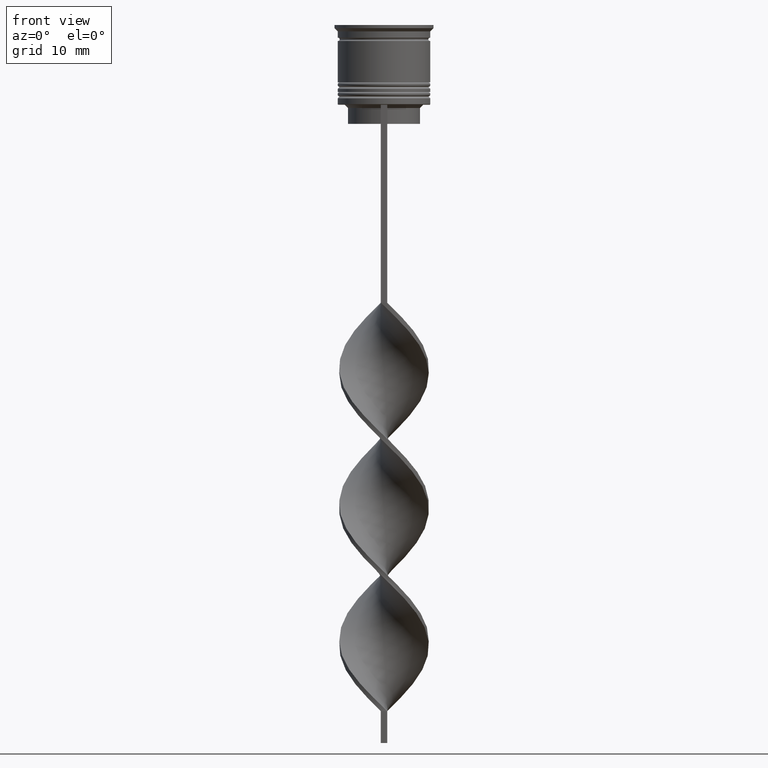
[diagram: clean part render]
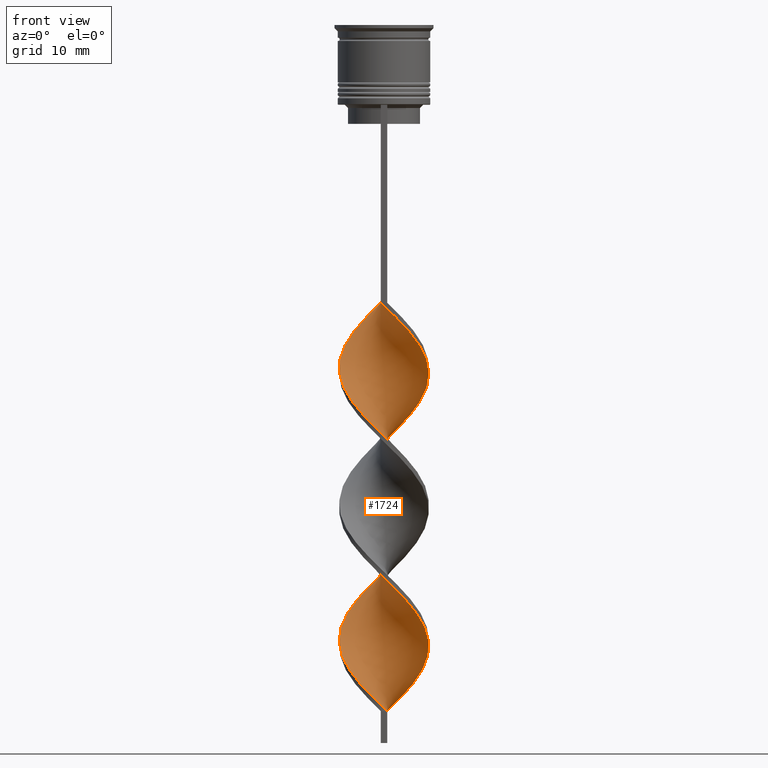
[diagram: same view with one face highlighted and labeled with its STEP entity id]
A machine part, front view. The second image highlights one B-rep face of the part: STEP entity #1724.
In plain terms, the highlighted face is a freeform B-spline surface patch.
Its self-contained STEP definition (entity closure, byte-faithful):
#1 = CARTESIAN_POINT ( 'NONE',  ( 0.4999999999999991673, -7.000000000000002665, -107.5000000000000000 ) ) ;
#11 = CARTESIAN_POINT ( 'NONE',  ( -7.009230458814042386, 0.3474023247382359014, -96.01282051282051100 ) ) ;
#31 = CARTESIAN_POINT ( 'NONE',  ( -0.5000000000000000000, 7.000000000000002665, -86.16666666666667140 ) ) ;
#38 = CARTESIAN_POINT ( 'NONE',  ( -1.189738741299881442, -6.916250554126144756, -105.8589743589743506 ) ) ;
#45 = CARTESIAN_POINT ( 'NONE',  ( 5.612054764172301979, 4.298947400341747382, -101.7564102564102484 ) ) ;
#55 = CARTESIAN_POINT ( 'NONE',  ( -2.810334191479776589, -6.430553765594355653, -104.2179487179487012 ) ) ;
#59 = LINE ( 'NONE', #3297, #3370 ) ;
#61 = CARTESIAN_POINT ( 'NONE',  ( -0.5000000000000000000, 7.000000000000002665, -43.50000000000000000 ) ) ;
#63 = CARTESIAN_POINT ( 'NONE',  ( 1.349953882555826601, 6.939289008388866975, -64.01282051282051100 ) ) ;
#75 = CARTESIAN_POINT ( 'NONE',  ( -5.476854687890019058, -4.387945160064919747, -100.9358974358974308 ) ) ;
#83 = CARTESIAN_POINT ( 'NONE',  ( -6.044919434621172094, -3.564961294171259620, -79.60256410256410220 ) ) ;
#85 = CARTESIAN_POINT ( 'NONE',  ( 7.009230458814037057, 0.3474023247382328483, -54.98717948717948190 ) ) ;
#98 = CARTESIAN_POINT ( 'NONE',  ( -1.189738741299875224, 6.916250554126141203, -66.47435897435896379 ) ) ;
#100 = CARTESIAN_POINT ( 'NONE',  ( -0.5000000000000000000, -6.999999999999997335, -86.16666666666667140 ) ) ;
#116 = CARTESIAN_POINT ( 'NONE',  ( 6.477784105070041321, 2.830975188000771858, -100.1153846153846274 ) ) ;
#118 = CARTESIAN_POINT ( 'NONE',  ( 4.420173199369931361, 5.517080415812866789, -60.73076923076922640 ) ) ;
#138 = CARTESIAN_POINT ( 'NONE',  ( -5.612054764172303756, 4.298947400341753600, -91.91025641025643722 ) ) ;
#141 = CARTESIAN_POINT ( 'NONE',  ( -6.477784105070042209, -2.830975188000768306, -78.78205128205127039 ) ) ;
#156 = CARTESIAN_POINT ( 'NONE',  ( -6.009647691495620947, -3.722934602041179097, -57.44871794871794890 ) ) ;
#177 = CARTESIAN_POINT ( 'NONE',  ( 0.5000000000000008882, 6.999999999999997335, -107.5000000000000000 ) ) ;
#196 = CARTESIAN_POINT ( 'NONE',  ( -4.420173199369934025, 5.517080415812872118, -47.60256410256409509 ) ) ;
#220 = CARTESIAN_POINT ( 'NONE',  ( -4.420173199369934025, 5.517080415812871230, -47.60256410256408799 ) ) ;
#229 = CARTESIAN_POINT ( 'NONE',  ( -6.967048179568302579, 1.198476987909311120, -52.52564102564102910 ) ) ;
#236 = CARTESIAN_POINT ( 'NONE',  ( -2.810334191479776589, -6.430553765594355653, -61.55128205128204399 ) ) ;
#246 = CARTESIAN_POINT ( 'NONE',  ( 4.267603233600013368, -5.571136566318104499, -48.42307692307691269 ) ) ;
#250 = CARTESIAN_POINT ( 'NONE',  ( -7.051412738059782193, -0.5036723384328409825, -96.83333333333332860 ) ) ;
#259 = CARTESIAN_POINT ( 'NONE',  ( -2.971407234896037863, 6.414580771288304284, -88.62820512820513841 ) ) ;
#262 = CARTESIAN_POINT ( 'NONE',  ( 5.016113981771116670, 4.908013908077306198, -102.5769230769230660 ) ) ;
#279 = CARTESIAN_POINT ( 'NONE',  ( 6.009647691495615618, -3.722934602041177765, -93.55128205128204399 ) ) ;
#283 = CARTESIAN_POINT ( 'NONE',  ( 6.009647691495623612, 3.722934602041175989, -78.78205128205127039 ) ) ;
#298 = CARTESIAN_POINT ( 'NONE',  ( 6.725974819057658038, 2.176550059239732882, -77.14102564102563520 ) ) ;
#316 = CARTESIAN_POINT ( 'NONE',  ( 2.160680558725932343, 6.676934889838581633, -105.8589743589743506 ) ) ;
#318 = CARTESIAN_POINT ( 'NONE',  ( -1.189738741299881442, -6.916250554126144756, -105.8589743589743506 ) ) ;
#331 = CARTESIAN_POINT ( 'NONE',  ( -2.029523600043928955, 6.771790116641154711, -67.29487179487178139 ) ) ;
#334 = CARTESIAN_POINT ( 'NONE',  ( -0.5000000000000000000, -6.999999999999997335, -43.50000000000000000 ) ) ;
#349 = CARTESIAN_POINT ( 'NONE',  ( 0.5000000000000008882, 6.999999999999997335, -64.83333333333332860 ) ) ;
#352 = CARTESIAN_POINT ( 'NONE',  ( 5.612054764172301979, 4.298947400341747382, -59.08974358974358410 ) ) ;
#373 = CARTESIAN_POINT ( 'NONE',  ( -5.016113981771117558, -4.908013908077305310, -81.24358974358973740 ) ) ;
#375 = CARTESIAN_POINT ( 'NONE',  ( -2.971407234896038752, -6.414580771288298067, -83.70512820512820440 ) ) ;
#389 = CARTESIAN_POINT ( 'NONE',  ( 7.051412738059776864, -0.5036723384328418707, -96.83333333333332860 ) ) ;
#391 = CARTESIAN_POINT ( 'NONE',  ( -6.725974819057651821, 2.176550059239734658, -73.85897435897436480 ) ) ;
#405 = CARTESIAN_POINT ( 'NONE',  ( -0.5000000000000000000, 7.000000000000002665, -86.16666666666667140 ) ) ;
#407 = CARTESIAN_POINT ( 'NONE',  ( -6.367811255276632387, 2.949742330640457766, -73.03846153846153300 ) ) ;
#426 = CARTESIAN_POINT ( 'NONE',  ( -6.722416142319174170, 2.014726087955044598, -94.37179487179486159 ) ) ;
#429 = CARTESIAN_POINT ( 'NONE',  ( 4.420173199369931361, 5.517080415812866789, -103.3974358974358836 ) ) ;
#433 = CARTESIAN_POINT ( 'NONE',  ( -5.476854687890019058, -4.387945160064919747, -58.26923076923076650 ) ) ;
#440 = CARTESIAN_POINT ( 'NONE',  ( -6.044919434621174759, 3.564961294171264949, -50.06410256410256210 ) ) ;
#444 = CARTESIAN_POINT ( 'NONE',  ( 2.971407234896037863, 6.414580771288298067, -105.0384615384615188 ) ) ;
#447 = CARTESIAN_POINT ( 'NONE',  ( -1.189738741299881442, -6.916250554126144756, -63.19230769230768630 ) ) ;
#463 = CARTESIAN_POINT ( 'NONE',  ( -6.367811255276639493, -2.949742330640456434, -56.62820512820513130 ) ) ;
#508 = CARTESIAN_POINT ( 'NONE',  ( -0.3499538825558272115, -7.060710991611133025, -64.01282051282051100 ) ) ;
#526 = CARTESIAN_POINT ( 'NONE',  ( 0.3499538825558280997, 7.060710991611133025, -85.34615384615383959 ) ) ;
#540 = CARTESIAN_POINT ( 'NONE',  ( -5.476854687890019058, -4.387945160064919747, -100.9358974358974308 ) ) ;
#558 = CARTESIAN_POINT ( 'NONE',  ( 3.591144782915620226, 6.089317414547553042, -82.06410256410255499 ) ) ;
#562 = CARTESIAN_POINT ( 'NONE',  ( -6.009647691495620947, -3.722934602041179097, -100.1153846153846274 ) ) ;
#583 = CARTESIAN_POINT ( 'NONE',  ( 2.971407234896038307, 6.414580771288298067, -105.0384615384615330 ) ) ;
#586 = CARTESIAN_POINT ( 'NONE',  ( 7.051412738059782193, 0.5036723384328402053, -75.50000000000000000 ) ) ;
#604 = CARTESIAN_POINT ( 'NONE',  ( 6.044919434621172094, 3.564961294171260509, -58.26923076923076650 ) ) ;
#606 = CARTESIAN_POINT ( 'NONE',  ( 6.888693778558713454, -1.340111198836289264, -53.34615384615383959 ) ) ;
#624 = CARTESIAN_POINT ( 'NONE',  ( -1.349953882555824158, 6.939289008388872304, -44.32051282051282470 ) ) ;
#627 = CARTESIAN_POINT ( 'NONE',  ( -6.044919434621172094, -3.564961294171259620, -79.60256410256410220 ) ) ;
#640 = CARTESIAN_POINT ( 'NONE',  ( 3.591144782915614453, -6.089317414547549490, -90.26923076923075939 ) ) ;
#643 = CARTESIAN_POINT ( 'NONE',  ( 4.267603233600013368, -5.571136566318104499, -48.42307692307691269 ) ) ;
#662 = CARTESIAN_POINT ( 'NONE',  ( 2.971407234896038307, 6.414580771288298067, -62.37179487179486870 ) ) ;
#664 = CARTESIAN_POINT ( 'NONE',  ( -4.267603233600012480, 5.571136566318105388, -69.75641025641024839 ) ) ;
#680 = CARTESIAN_POINT ( 'NONE',  ( 2.029523600043936060, 6.771790116641158264, -83.70512820512820440 ) ) ;
#684 = CARTESIAN_POINT ( 'NONE',  ( 0.3499538825558234922, -7.060710991611127696, -44.32051282051282470 ) ) ;
#697 = VERTEX_POINT ( 'NONE', #3326 ) ;
#699 = CARTESIAN_POINT ( 'NONE',  ( 5.476854687890019946, 4.387945160064918859, -79.60256410256410220 ) ) ;
#705 = ORIENTED_EDGE ( 'NONE', *, *, #3350, .T. ) ;
#726 = CARTESIAN_POINT ( 'NONE',  ( -7.009230458814042386, 0.3474023247382359014, -53.34615384615383959 ) ) ;
#728 = CARTESIAN_POINT ( 'NONE',  ( 4.944061684284414504, -5.052955718088659509, -91.91025641025643722 ) ) ;
#732 = CARTESIAN_POINT ( 'NONE',  ( -2.160680558725931011, 6.676934889838587850, -45.14102564102563520 ) ) ;
#747 = CARTESIAN_POINT ( 'NONE',  ( 6.477784105070043985, -2.830975188000779408, -72.21794871794871540 ) ) ;
#762 = EDGE_CURVE ( 'NONE', #1523, #1484, #2705, .T. ) ;
#763 = CARTESIAN_POINT ( 'NONE',  ( 0.4999999999999991673, -7.000000000000002665, -64.83333333333332860 ) ) ;
#783 = CARTESIAN_POINT ( 'NONE',  ( 2.160680558725928790, -6.676934889838588738, -66.47435897435896379 ) ) ;
#791 = CARTESIAN_POINT ( 'NONE',  ( 4.420173199369933137, -5.517080415812872118, -68.93589743589743080 ) ) ;
#799 = CARTESIAN_POINT ( 'NONE',  ( 4.944061684284414504, -5.052955718088659509, -49.24358974358973740 ) ) ;
#804 = EDGE_CURVE ( 'NONE', #962, #1484, #3228, .T. ) ;
#808 = CARTESIAN_POINT ( 'NONE',  ( 6.725974819057658038, 2.176550059239733326, -77.14102564102563520 ) ) ;
#823 = CARTESIAN_POINT ( 'NONE',  ( 6.722416142319168841, 2.014726087955040157, -99.29487179487178139 ) ) ;
#834 = CARTESIAN_POINT ( 'NONE',  ( 6.888693778558720560, 1.340111198836283490, -76.32051282051281760 ) ) ;
#842 =( BOUNDED_SURFACE ( )  B_SPLINE_SURFACE ( 1, 2, ( 
 ( #1901, #1592, #2658, #2961, #1865, #1327, #246, #799, #1629, #2393, #3213, #2673, #3514, #2412, #2162, #3249, #1077, #2693, #604, #3299, #952, #2534, #1711, #662, #2779, #3087, #349, #1429, #98, #331, #1445, #914, #2208, #2743, #2514, #3047, #1980, #1679, #1141, #1485, #2798, #1198, #2287, #3033, #83, #2268, #373, #1178, #3352, #1749, #1414, #931, #2817, #1160, #2250, #3336, #3064, #640, #2479, #2228, #1728, #3319, #1694, #1466, #1999, #389, #3375, #893, #2548, #116, #2492, #45, #1214, #2762, #2022, #583, #316, #875, #1948 ),
 ( #61, #624, #1964, #1860, #2125, #220, #1087, #2423, #440, #2604, #983, #3139, #726, #1805, #1619, #1601, #1319, #156, #2406, #3206, #3470, #3393, #236, #1234, #2667, #508, #1355, #1338, #2384, #1249, #3492, #791, #1052, #967, #1071, #2308, #2144, #3223, #3510, #2039, #2938, #808, #1875, #3103, #699, #2833, #1766, #1542, #3408, #680, #2954, #526, #405, #2686, #2876, #259, #1501, #3117, #2567, #138, #1782, #2851, #426, #2324, #1524, #2587, #2056, #2756, #2703, #562, #75, #1408, #1957, #3041, #55, #1151, #38, #1690, #1 ) ),
 .UNSPECIFIED., .F., .F., .F. ) 
 B_SPLINE_SURFACE_WITH_KNOTS ( ( 2, 2 ),
 ( 3, 2, 2, 2, 2, 2, 2, 2, 2, 2, 2, 2, 2, 2, 2, 2, 2, 2, 2, 2, 2, 2, 2, 2, 2, 2, 2, 2, 2, 2, 2, 2, 2, 2, 2, 2, 2, 2, 2, 3 ),
 ( 0.000000000000000000, 1.000000000000000000 ),
 ( 0.000000000000000000, 0.01923076923076923184, 0.03846153846153846367, 0.05769230769230769551, 0.07692307692307692735, 0.09615384615384615918, 0.1153846153846153910, 0.1346153846153846090, 0.1538461538461538547, 0.1730769230769230727, 0.1923076923076923184, 0.2115384615384615363, 0.2307692307692307820, 0.2500000000000000000, 0.2692307692307692180, 0.2884615384615384359, 0.3076923076923077094, 0.3269230769230769273, 0.3461538461538461453, 0.3653846153846153633, 0.3846153846153846367, 0.4038461538461538547, 0.4230769230769230727, 0.4423076923076922906, 0.4615384615384615641, 0.4807692307692307820, 0.5000000000000000000, 0.5192307692307692735, 0.5384615384615384359, 0.5576923076923077094, 0.5769230769230768718, 0.5961538461538461453, 0.6153846153846154188, 0.6346153846153845812, 0.6538461538461538547, 0.6730769230769231282, 0.6923076923076922906, 0.7115384615384615641, 0.7307692307692307265, 0.7500000000000000000 ),
 .UNSPECIFIED. ) 
 GEOMETRIC_REPRESENTATION_ITEM ( )  RATIONAL_B_SPLINE_SURFACE ( (
 ( 1.000000000000000000, 0.9927088740980539727, 1.000000000000000000, 0.9927088740980539727, 1.000000000000000000, 0.9927088740980539727, 1.000000000000000000, 0.9927088740980539727, 1.000000000000000000, 0.9927088740980539727, 1.000000000000000000, 0.9927088740980539727, 1.000000000000000000, 0.9927088740980539727, 1.000000000000000000, 0.9927088740980539727, 1.000000000000000000, 0.9927088740980539727, 1.000000000000000000, 0.9927088740980539727, 1.000000000000000000, 0.9927088740980539727, 1.000000000000000000, 0.9927088740980539727, 1.000000000000000000, 0.9927088740980539727, 1.000000000000000000, 0.9927088740980539727, 1.000000000000000000, 0.9927088740980539727, 1.000000000000000000, 0.9927088740980539727, 1.000000000000000000, 0.9927088740980539727, 1.000000000000000000, 0.9927088740980539727, 1.000000000000000000, 0.9927088740980539727, 1.000000000000000000, 0.9927088740980539727, 1.000000000000000000, 0.9927088740980539727, 1.000000000000000000, 0.9927088740980539727, 1.000000000000000000, 0.9927088740980539727, 1.000000000000000000, 0.9927088740980539727, 1.000000000000000000, 0.9927088740980539727, 1.000000000000000000, 0.9927088740980539727, 1.000000000000000000, 0.9927088740980539727, 1.000000000000000000, 0.9927088740980539727, 1.000000000000000000, 0.9927088740980539727, 1.000000000000000000, 0.9927088740980539727, 1.000000000000000000, 0.9927088740980539727, 1.000000000000000000, 0.9927088740980539727, 1.000000000000000000, 0.9927088740980539727, 1.000000000000000000, 0.9927088740980539727, 1.000000000000000000, 0.9927088740980539727, 1.000000000000000000, 0.9927088740980539727, 1.000000000000000000, 0.9927088740980539727, 1.000000000000000000, 0.9927088740980539727, 1.000000000000000000, 0.9927088740980539727, 1.000000000000000000),
 ( 1.000000000000000000, 0.9927088740980539727, 1.000000000000000000, 0.9927088740980539727, 1.000000000000000000, 0.9927088740980539727, 1.000000000000000000, 0.9927088740980539727, 1.000000000000000000, 0.9927088740980539727, 1.000000000000000000, 0.9927088740980539727, 1.000000000000000000, 0.9927088740980539727, 1.000000000000000000, 0.9927088740980539727, 1.000000000000000000, 0.9927088740980539727, 1.000000000000000000, 0.9927088740980539727, 1.000000000000000000, 0.9927088740980539727, 1.000000000000000000, 0.9927088740980539727, 1.000000000000000000, 0.9927088740980539727, 1.000000000000000000, 0.9927088740980539727, 1.000000000000000000, 0.9927088740980539727, 1.000000000000000000, 0.9927088740980539727, 1.000000000000000000, 0.9927088740980539727, 1.000000000000000000, 0.9927088740980539727, 1.000000000000000000, 0.9927088740980539727, 1.000000000000000000, 0.9927088740980539727, 1.000000000000000000, 0.9927088740980539727, 1.000000000000000000, 0.9927088740980539727, 1.000000000000000000, 0.9927088740980539727, 1.000000000000000000, 0.9927088740980539727, 1.000000000000000000, 0.9927088740980539727, 1.000000000000000000, 0.9927088740980539727, 1.000000000000000000, 0.9927088740980539727, 1.000000000000000000, 0.9927088740980539727, 1.000000000000000000, 0.9927088740980539727, 1.000000000000000000, 0.9927088740980539727, 1.000000000000000000, 0.9927088740980539727, 1.000000000000000000, 0.9927088740980539727, 1.000000000000000000, 0.9927088740980539727, 1.000000000000000000, 0.9927088740980539727, 1.000000000000000000, 0.9927088740980539727, 1.000000000000000000, 0.9927088740980539727, 1.000000000000000000, 0.9927088740980539727, 1.000000000000000000, 0.9927088740980539727, 1.000000000000000000, 0.9927088740980539727, 1.000000000000000000) ) ) 
 REPRESENTATION_ITEM ( '' )  SURFACE ( )  );
#849 = CARTESIAN_POINT ( 'NONE',  ( -1.349953882555824158, 6.939289008388872304, -86.98717948717948900 ) ) ;
#862 = CARTESIAN_POINT ( 'NONE',  ( -6.888693778558718783, -1.340111198836287487, -97.65384615384614619 ) ) ;
#875 = CARTESIAN_POINT ( 'NONE',  ( 1.349953882555826601, 6.939289008388866975, -106.6794871794871682 ) ) ;
#878 = CARTESIAN_POINT ( 'NONE',  ( 2.160680558725932343, 6.676934889838581633, -63.19230769230768630 ) ) ;
#893 = CARTESIAN_POINT ( 'NONE',  ( 6.967048179568296362, 1.198476987909309566, -98.47435897435896379 ) ) ;
#895 = CARTESIAN_POINT ( 'NONE',  ( -0.3499538825558217714, 7.060710991611127696, -65.65384615384614619 ) ) ;
#896 = EDGE_CURVE ( 'NONE', #697, #1523, #3477, .T. ) ;
#914 = CARTESIAN_POINT ( 'NONE',  ( -3.591144782915613565, 6.089317414547550378, -68.93589743589743080 ) ) ;
#916 = CARTESIAN_POINT ( 'NONE',  ( -3.591144782915613565, 6.089317414547550378, -68.93589743589743080 ) ) ;
#931 = CARTESIAN_POINT ( 'NONE',  ( -1.349953882555827489, -6.939289008388866975, -85.34615384615383959 ) ) ;
#933 = CARTESIAN_POINT ( 'NONE',  ( 2.810334191479773480, -6.430553765594351212, -89.44871794871794179 ) ) ;
#952 = CARTESIAN_POINT ( 'NONE',  ( 5.016113981771116670, 4.908013908077306198, -59.91025641025640880 ) ) ;
#955 = CARTESIAN_POINT ( 'NONE',  ( 2.971407234896037863, 6.414580771288298067, -62.37179487179486870 ) ) ;
#962 = VERTEX_POINT ( 'NONE', #2957 ) ;
#967 = CARTESIAN_POINT ( 'NONE',  ( 5.612054764172302868, -4.298947400341755376, -70.57692307692306599 ) ) ;
#969 = CARTESIAN_POINT ( 'NONE',  ( 1.349953882555826601, 6.939289008388866975, -106.6794871794871824 ) ) ;
#983 = CARTESIAN_POINT ( 'NONE',  ( -6.722416142319174170, 2.014726087955044598, -51.70512820512820440 ) ) ;
#985 = CARTESIAN_POINT ( 'NONE',  ( 2.160680558725932343, 6.676934889838581633, -105.8589743589743506 ) ) ;
#991 = CARTESIAN_POINT ( 'NONE',  ( -4.944061684284419833, -5.052955718088660397, -59.08974358974358410 ) ) ;
#1012 = CARTESIAN_POINT ( 'NONE',  ( 5.016113981771116670, -4.908013908077313303, -69.75641025641024839 ) ) ;
#1030 = CARTESIAN_POINT ( 'NONE',  ( -2.029523600043935616, -6.771790116641158264, -62.37179487179486870 ) ) ;
#1043 = CARTESIAN_POINT ( 'NONE',  ( -5.016113981771117558, 4.908013908077312415, -48.42307692307691269 ) ) ;
#1052 = CARTESIAN_POINT ( 'NONE',  ( 5.016113981771116670, -4.908013908077313303, -69.75641025641024839 ) ) ;
#1056 = CARTESIAN_POINT ( 'NONE',  ( 3.695790217132984168, 5.965830593550582428, -104.2179487179487012 ) ) ;
#1065 = CARTESIAN_POINT ( 'NONE',  ( -1.349953882555824158, 6.939289008388872304, -44.32051282051282470 ) ) ;
#1071 = CARTESIAN_POINT ( 'NONE',  ( 6.044919434621174759, -3.564961294171264949, -71.39743589743588359 ) ) ;
#1077 = CARTESIAN_POINT ( 'NONE',  ( 6.722416142319168841, 2.014726087955040157, -56.62820512820513130 ) ) ;
#1079 = CARTESIAN_POINT ( 'NONE',  ( -2.971407234896037863, 6.414580771288304284, -88.62820512820512420 ) ) ;
#1087 = CARTESIAN_POINT ( 'NONE',  ( -5.016113981771117558, 4.908013908077312415, -48.42307692307691269 ) ) ;
#1115 = CARTESIAN_POINT ( 'NONE',  ( -2.160680558725931011, 6.676934889838587850, -87.80769230769230660 ) ) ;
#1132 = CARTESIAN_POINT ( 'NONE',  ( -6.725974819057657150, -2.176550059239735546, -98.47435897435896379 ) ) ;
#1141 = CARTESIAN_POINT ( 'NONE',  ( -6.888693778558713454, 1.340111198836291706, -74.67948717948718240 ) ) ;
#1151 = CARTESIAN_POINT ( 'NONE',  ( -2.029523600043935616, -6.771790116641158264, -105.0384615384615330 ) ) ;
#1160 = CARTESIAN_POINT ( 'NONE',  ( 0.3499538825558234922, -7.060710991611127696, -86.98717948717948900 ) ) ;
#1163 = CARTESIAN_POINT ( 'NONE',  ( -5.476854687890014617, 4.387945160064918859, -71.39743589743588359 ) ) ;
#1178 = CARTESIAN_POINT ( 'NONE',  ( -4.420173199369932249, -5.517080415812865901, -82.06410256410255499 ) ) ;
#1180 = CARTESIAN_POINT ( 'NONE',  ( 6.044919434621172094, 3.564961294171260509, -58.26923076923076650 ) ) ;
#1198 = CARTESIAN_POINT ( 'NONE',  ( -6.967048179568297250, -1.198476987909306679, -77.14102564102563520 ) ) ;
#1200 = CARTESIAN_POINT ( 'NONE',  ( 1.189738741299877445, -6.916250554126140315, -87.80769230769230660 ) ) ;
#1214 = CARTESIAN_POINT ( 'NONE',  ( 5.016113981771116670, 4.908013908077306198, -102.5769230769230660 ) ) ;
#1234 = CARTESIAN_POINT ( 'NONE',  ( -2.029523600043935616, -6.771790116641158264, -62.37179487179486870 ) ) ;
#1249 = CARTESIAN_POINT ( 'NONE',  ( 2.971407234896034755, -6.414580771288305172, -67.29487179487178139 ) ) ;
#1252 = CARTESIAN_POINT ( 'NONE',  ( 0.5000000000000008882, 6.999999999999997335, -107.5000000000000000 ) ) ;
#1256 = CARTESIAN_POINT ( 'NONE',  ( -0.5000000000000000000, 7.000000000000002665, -43.50000000000000000 ) ) ;
#1273 = CARTESIAN_POINT ( 'NONE',  ( 3.695790217132985500, -5.965830593550586869, -68.11538461538459899 ) ) ;
#1294 = CARTESIAN_POINT ( 'NONE',  ( -3.591144782915619338, -6.089317414547553042, -60.73076923076922640 ) ) ;
#1310 = CARTESIAN_POINT ( 'NONE',  ( -0.3499538825558272115, -7.060710991611133025, -64.01282051282051100 ) ) ;
#1319 = CARTESIAN_POINT ( 'NONE',  ( -6.367811255276639493, -2.949742330640456434, -56.62820512820513130 ) ) ;
#1327 = CARTESIAN_POINT ( 'NONE',  ( 3.591144782915614453, -6.089317414547549490, -47.60256410256408799 ) ) ;
#1338 = CARTESIAN_POINT ( 'NONE',  ( 1.349953882555822382, -6.939289008388872304, -65.65384615384614619 ) ) ;
#1341 = CARTESIAN_POINT ( 'NONE',  ( 0.5000000000000008882, 6.999999999999997335, -107.5000000000000000 ) ) ;
#1355 = CARTESIAN_POINT ( 'NONE',  ( 0.4999999999999991673, -7.000000000000002665, -64.83333333333332860 ) ) ;
#1363 = CARTESIAN_POINT ( 'NONE',  ( 0.3499538825558280997, 7.060710991611133025, -85.34615384615385381 ) ) ;
#1380 = CARTESIAN_POINT ( 'NONE',  ( -2.810334191479776589, -6.430553765594355653, -104.2179487179487012 ) ) ;
#1399 = CARTESIAN_POINT ( 'NONE',  ( -3.695790217132985944, 5.965830593550586869, -89.44871794871794179 ) ) ;
#1408 = CARTESIAN_POINT ( 'NONE',  ( -4.944061684284419833, -5.052955718088660397, -101.7564102564102484 ) ) ;
#1414 = CARTESIAN_POINT ( 'NONE',  ( -2.160680558725935896, -6.676934889838579856, -84.52564102564103621 ) ) ;
#1417 = CARTESIAN_POINT ( 'NONE',  ( -6.009647691495620947, -3.722934602041179097, -100.1153846153846132 ) ) ;
#1429 = CARTESIAN_POINT ( 'NONE',  ( -0.3499538825558217714, 7.060710991611127696, -65.65384615384614619 ) ) ;
#1431 = CARTESIAN_POINT ( 'NONE',  ( 6.722416142319168841, 2.014726087955040157, -56.62820512820513130 ) ) ;
#1434 = ORIENTED_EDGE ( 'NONE', *, *, #896, .F. ) ;
#1445 = CARTESIAN_POINT ( 'NONE',  ( -2.810334191479773036, 6.430553765594351212, -68.11538461538459899 ) ) ;
#1448 = CARTESIAN_POINT ( 'NONE',  ( -6.722416142319169730, -2.014726087955041045, -77.96153846153845279 ) ) ;
#1466 = CARTESIAN_POINT ( 'NONE',  ( 6.725974819057650933, -2.176550059239735546, -95.19230769230769340 ) ) ;
#1470 = CARTESIAN_POINT ( 'NONE',  ( -2.160680558725935896, -6.676934889838579856, -84.52564102564103621 ) ) ;
#1484 = VERTEX_POINT ( 'NONE', #2947 ) ;
#1485 = CARTESIAN_POINT ( 'NONE',  ( -7.051412738059776864, 0.5036723384328427588, -75.49999999999998579 ) ) ;
#1487 = CARTESIAN_POINT ( 'NONE',  ( 4.944061684284414504, -5.052955718088659509, -49.24358974358974450 ) ) ;
#1501 = CARTESIAN_POINT ( 'NONE',  ( -3.695790217132985944, 5.965830593550586869, -89.44871794871794179 ) ) ;
#1503 = CARTESIAN_POINT ( 'NONE',  ( 2.810334191479773480, -6.430553765594351212, -46.78205128205127750 ) ) ;
#1523 = VERTEX_POINT ( 'NONE', #1252 ) ;
#1524 = CARTESIAN_POINT ( 'NONE',  ( -7.009230458814042386, 0.3474023247382359014, -96.01282051282051100 ) ) ;
#1542 = CARTESIAN_POINT ( 'NONE',  ( 3.591144782915620226, 6.089317414547552154, -82.06410256410255499 ) ) ;
#1549 = CARTESIAN_POINT ( 'NONE',  ( 0.4999999999999996669, -2.333333333333336590, -107.5000000000000000 ) ) ;
#1574 = ORIENTED_EDGE ( 'NONE', *, *, #804, .T. ) ;
#1592 = CARTESIAN_POINT ( 'NONE',  ( 0.3499538825558234922, -7.060710991611127696, -44.32051282051282470 ) ) ;
#1601 = CARTESIAN_POINT ( 'NONE',  ( -6.725974819057657150, -2.176550059239735990, -55.80769230769230660 ) ) ;
#1619 = CARTESIAN_POINT ( 'NONE',  ( -6.888693778558718783, -1.340111198836287487, -54.98717948717948190 ) ) ;
#1623 = CARTESIAN_POINT ( 'NONE',  ( 4.267603233600013368, -5.571136566318104499, -91.08974358974359120 ) ) ;
#1629 = CARTESIAN_POINT ( 'NONE',  ( 5.476854687890014617, -4.387945160064918859, -50.06410256410256210 ) ) ;
#1646 = CARTESIAN_POINT ( 'NONE',  ( 6.367811255276638605, 2.949742330640457322, -77.96153846153845279 ) ) ;
#1661 = CARTESIAN_POINT ( 'NONE',  ( -5.612054764172303756, 4.298947400341753600, -91.91025641025643722 ) ) ;
#1679 = CARTESIAN_POINT ( 'NONE',  ( -6.725974819057651821, 2.176550059239735102, -73.85897435897436480 ) ) ;
#1690 = CARTESIAN_POINT ( 'NONE',  ( -0.3499538825558272115, -7.060710991611133025, -106.6794871794871682 ) ) ;
#1694 = CARTESIAN_POINT ( 'NONE',  ( 6.367811255276632387, -2.949742330640456878, -94.37179487179486159 ) ) ;
#1696 = CARTESIAN_POINT ( 'NONE',  ( -6.009647691495613842, 3.722934602041180430, -72.21794871794871540 ) ) ;
#1711 = CARTESIAN_POINT ( 'NONE',  ( 3.695790217132984168, 5.965830593550582428, -61.55128205128204399 ) ) ;
#1714 = CARTESIAN_POINT ( 'NONE',  ( -5.612054764172303756, -4.298947400341743830, -80.42307692307691980 ) ) ;
#1724 = ADVANCED_FACE ( 'NONE', ( #1929 ), #842, .T. ) ;
#1728 = CARTESIAN_POINT ( 'NONE',  ( 5.476854687890014617, -4.387945160064918859, -92.73076923076922640 ) ) ;
#1733 = CARTESIAN_POINT ( 'NONE',  ( -3.695790217132987721, -5.965830593550580652, -82.88461538461537259 ) ) ;
#1749 = CARTESIAN_POINT ( 'NONE',  ( -2.971407234896039196, -6.414580771288298067, -83.70512820512820440 ) ) ;
#1751 = CARTESIAN_POINT ( 'NONE',  ( 2.029523600043931175, -6.771790116641153823, -45.96153846153845990 ) ) ;
#1766 = CARTESIAN_POINT ( 'NONE',  ( 4.267603233600020474, 5.571136566318105388, -81.24358974358973740 ) ) ;
#1768 = CARTESIAN_POINT ( 'NONE',  ( -2.029523600043928955, 6.771790116641154711, -67.29487179487178139 ) ) ;
#1782 = CARTESIAN_POINT ( 'NONE',  ( -6.044919434621174759, 3.564961294171264949, -92.73076923076922640 ) ) ;
#1792 = CARTESIAN_POINT ( 'NONE',  ( -6.725974819057657150, -2.176550059239735546, -55.80769230769230660 ) ) ;
#1805 = CARTESIAN_POINT ( 'NONE',  ( -7.051412738059782193, -0.5036723384328409825, -54.16666666666665719 ) ) ;
#1810 = CARTESIAN_POINT ( 'NONE',  ( -7.051412738059782193, -0.5036723384328409825, -54.16666666666666430 ) ) ;
#1853 = CARTESIAN_POINT ( 'NONE',  ( -3.695790217132985944, 5.965830593550586869, -46.78205128205127750 ) ) ;
#1860 = CARTESIAN_POINT ( 'NONE',  ( -2.971407234896037863, 6.414580771288304284, -45.96153846153845279 ) ) ;
#1865 = CARTESIAN_POINT ( 'NONE',  ( 2.810334191479773480, -6.430553765594351212, -46.78205128205127750 ) ) ;
#1875 = CARTESIAN_POINT ( 'NONE',  ( 6.367811255276638605, 2.949742330640457322, -77.96153846153845279 ) ) ;
#1883 = CARTESIAN_POINT ( 'NONE',  ( 6.722416142319174170, -2.014726087955045042, -73.03846153846153300 ) ) ;
#1901 = CARTESIAN_POINT ( 'NONE',  ( -0.5000000000000000000, -6.999999999999997335, -43.50000000000000000 ) ) ;
#1904 = CARTESIAN_POINT ( 'NONE',  ( 4.944061684284423386, 5.052955718088656845, -80.42307692307691980 ) ) ;
#1918 = CARTESIAN_POINT ( 'NONE',  ( -6.722416142319174170, 2.014726087955044598, -94.37179487179486159 ) ) ;
#1929 = FACE_OUTER_BOUND ( 'NONE', #2361, .T. ) ;
#1931 = CARTESIAN_POINT ( 'NONE',  ( -4.267603233600019585, -5.571136566318106276, -102.5769230769230660 ) ) ;
#1948 = CARTESIAN_POINT ( 'NONE',  ( 0.5000000000000008882, 6.999999999999997335, -107.5000000000000000 ) ) ;
#1951 = CARTESIAN_POINT ( 'NONE',  ( -4.944061684284411839, 5.052955718088659509, -70.57692307692306599 ) ) ;
#1957 = CARTESIAN_POINT ( 'NONE',  ( -4.267603233600019585, -5.571136566318106276, -102.5769230769230660 ) ) ;
#1964 = CARTESIAN_POINT ( 'NONE',  ( -2.160680558725931011, 6.676934889838587850, -45.14102564102563520 ) ) ;
#1966 = CARTESIAN_POINT ( 'NONE',  ( -1.189738741299875224, 6.916250554126141203, -66.47435897435896379 ) ) ;
#1980 = CARTESIAN_POINT ( 'NONE',  ( -6.367811255276632387, 2.949742330640457766, -73.03846153846153300 ) ) ;
#1982 = CARTESIAN_POINT ( 'NONE',  ( 6.967048179568297250, 1.198476987909309344, -55.80769230769230660 ) ) ;
#1999 = CARTESIAN_POINT ( 'NONE',  ( 6.888693778558713454, -1.340111198836289264, -96.01282051282051100 ) ) ;
#2004 = CARTESIAN_POINT ( 'NONE',  ( 1.189738741299877445, -6.916250554126140315, -45.14102564102563520 ) ) ;
#2022 = CARTESIAN_POINT ( 'NONE',  ( 3.695790217132984168, 5.965830593550582428, -104.2179487179487012 ) ) ;
#2039 = CARTESIAN_POINT ( 'NONE',  ( 7.051412738059782193, 0.5036723384328400943, -75.49999999999998579 ) ) ;
#2056 = CARTESIAN_POINT ( 'NONE',  ( -6.888693778558718783, -1.340111198836287487, -97.65384615384614619 ) ) ;
#2065 = CARTESIAN_POINT ( 'NONE',  ( -4.267603233600019585, -5.571136566318106276, -59.91025641025640880 ) ) ;
#2084 = CARTESIAN_POINT ( 'NONE',  ( 5.612054764172302868, -4.298947400341755376, -70.57692307692306599 ) ) ;
#2115 = CARTESIAN_POINT ( 'NONE',  ( -5.612054764172303756, 4.298947400341753600, -49.24358974358974450 ) ) ;
#2125 = CARTESIAN_POINT ( 'NONE',  ( -3.695790217132985944, 5.965830593550586869, -46.78205128205127750 ) ) ;
#2144 = CARTESIAN_POINT ( 'NONE',  ( 6.722416142319174170, -2.014726087955045042, -73.03846153846153300 ) ) ;
#2147 = CARTESIAN_POINT ( 'NONE',  ( 7.051412738059777752, -0.5036723384328418707, -96.83333333333332860 ) ) ;
#2162 = CARTESIAN_POINT ( 'NONE',  ( 7.009230458814037057, 0.3474023247382328483, -54.98717948717948190 ) ) ;
#2164 = CARTESIAN_POINT ( 'NONE',  ( 5.476854687890019946, 4.387945160064918859, -79.60256410256410220 ) ) ;
#2196 = CARTESIAN_POINT ( 'NONE',  ( -6.477784105070046650, 2.830975188000775411, -93.55128205128204399 ) ) ;
#2208 = CARTESIAN_POINT ( 'NONE',  ( -4.267603233600012480, 5.571136566318105388, -69.75641025641024839 ) ) ;
#2228 = CARTESIAN_POINT ( 'NONE',  ( 4.944061684284414504, -5.052955718088659509, -91.91025641025643722 ) ) ;
#2248 = DIRECTION ( 'NONE',  ( 0.000000000000000000, 1.000000000000000000, 0.000000000000000000 ) ) ;
#2250 = CARTESIAN_POINT ( 'NONE',  ( 1.189738741299877445, -6.916250554126140315, -87.80769230769230660 ) ) ;
#2252 = CARTESIAN_POINT ( 'NONE',  ( -5.016113981771117558, -4.908013908077305310, -81.24358974358973740 ) ) ;
#2268 = CARTESIAN_POINT ( 'NONE',  ( -5.612054764172303756, -4.298947400341743830, -80.42307692307691980 ) ) ;
#2270 = CARTESIAN_POINT ( 'NONE',  ( 2.029523600043931175, -6.771790116641153823, -88.62820512820512420 ) ) ;
#2287 = CARTESIAN_POINT ( 'NONE',  ( -6.722416142319169730, -2.014726087955041045, -77.96153846153845279 ) ) ;
#2290 = CARTESIAN_POINT ( 'NONE',  ( 6.725974819057650933, -2.176550059239735102, -52.52564102564102910 ) ) ;
#2308 = CARTESIAN_POINT ( 'NONE',  ( 6.477784105070043985, -2.830975188000778964, -72.21794871794871540 ) ) ;
#2311 = CARTESIAN_POINT ( 'NONE',  ( 6.888693778558713454, -1.340111198836289264, -96.01282051282051100 ) ) ;
#2324 = CARTESIAN_POINT ( 'NONE',  ( -6.967048179568302579, 1.198476987909311342, -95.19230769230769340 ) ) ;
#2326 = CARTESIAN_POINT ( 'NONE',  ( 6.477784105070041321, 2.830975188000771858, -100.1153846153846132 ) ) ;
#2329 = CARTESIAN_POINT ( 'NONE',  ( -6.722416142319174170, 2.014726087955044598, -51.70512820512820440 ) ) ;
#2346 = CARTESIAN_POINT ( 'NONE',  ( 1.349953882555822382, -6.939289008388872304, -65.65384615384614619 ) ) ;
#2361 = EDGE_LOOP ( 'NONE', ( #705, #1574, #2757, #1434 ) ) ;
#2364 = CARTESIAN_POINT ( 'NONE',  ( -2.810334191479776589, -6.430553765594355653, -61.55128205128204399 ) ) ;
#2384 = CARTESIAN_POINT ( 'NONE',  ( 2.160680558725928790, -6.676934889838588738, -66.47435897435896379 ) ) ;
#2386 = CARTESIAN_POINT ( 'NONE',  ( 7.009230458814037057, 0.3474023247382328483, -97.65384615384614619 ) ) ;
#2393 = CARTESIAN_POINT ( 'NONE',  ( 6.009647691495616506, -3.722934602041177321, -50.88461538461538680 ) ) ;
#2397 = CARTESIAN_POINT ( 'NONE',  ( 0.5000000000000003331, 2.333333333333331261, -107.5000000000000000 ) ) ;
#2406 = CARTESIAN_POINT ( 'NONE',  ( -5.476854687890019058, -4.387945160064919747, -58.26923076923076650 ) ) ;
#2412 = CARTESIAN_POINT ( 'NONE',  ( 7.051412738059776864, -0.5036723384328418707, -54.16666666666665719 ) ) ;
#2415 = CARTESIAN_POINT ( 'NONE',  ( -4.420173199369934025, 5.517080415812872118, -90.26923076923077360 ) ) ;
#2423 = CARTESIAN_POINT ( 'NONE',  ( -5.612054764172303756, 4.298947400341753600, -49.24358974358973740 ) ) ;
#2426 = CARTESIAN_POINT ( 'NONE',  ( 3.591144782915614453, -6.089317414547549490, -90.26923076923077360 ) ) ;
#2432 = CARTESIAN_POINT ( 'NONE',  ( -2.029523600043935616, -6.771790116641158264, -105.0384615384615188 ) ) ;
#2446 = CARTESIAN_POINT ( 'NONE',  ( 1.189738741299885438, 6.916250554126144756, -84.52564102564103621 ) ) ;
#2466 = CARTESIAN_POINT ( 'NONE',  ( -5.016113981771117558, 4.908013908077312415, -91.08974358974359120 ) ) ;
#2479 = CARTESIAN_POINT ( 'NONE',  ( 4.267603233600013368, -5.571136566318104499, -91.08974358974359120 ) ) ;
#2481 = CARTESIAN_POINT ( 'NONE',  ( -6.044919434621174759, 3.564961294171264949, -92.73076923076922640 ) ) ;
#2492 = CARTESIAN_POINT ( 'NONE',  ( 6.044919434621172094, 3.564961294171260509, -100.9358974358974308 ) ) ;
#2514 = CARTESIAN_POINT ( 'NONE',  ( -5.476854687890014617, 4.387945160064918859, -71.39743589743588359 ) ) ;
#2518 = CARTESIAN_POINT ( 'NONE',  ( -4.420173199369932249, -5.517080415812866789, -82.06410256410255499 ) ) ;
#2534 = CARTESIAN_POINT ( 'NONE',  ( 4.420173199369931361, 5.517080415812865901, -60.73076923076922640 ) ) ;
#2537 = CARTESIAN_POINT ( 'NONE',  ( -1.349953882555827489, -6.939289008388866975, -85.34615384615385381 ) ) ;
#2548 = CARTESIAN_POINT ( 'NONE',  ( 6.722416142319168841, 2.014726087955040157, -99.29487179487178139 ) ) ;
#2550 = CARTESIAN_POINT ( 'NONE',  ( 7.051412738059777752, -0.5036723384328418707, -54.16666666666666430 ) ) ;
#2567 = CARTESIAN_POINT ( 'NONE',  ( -5.016113981771117558, 4.908013908077312415, -91.08974358974359120 ) ) ;
#2571 = CARTESIAN_POINT ( 'NONE',  ( -6.888693778558713454, 1.340111198836291706, -74.67948717948718240 ) ) ;
#2587 = CARTESIAN_POINT ( 'NONE',  ( -7.051412738059782193, -0.5036723384328409825, -96.83333333333332860 ) ) ;
#2593 = CARTESIAN_POINT ( 'NONE',  ( 0.4999999999999991673, -7.000000000000002665, -107.5000000000000000 ) ) ;
#2604 = CARTESIAN_POINT ( 'NONE',  ( -6.477784105070046650, 2.830975188000774967, -50.88461538461538680 ) ) ;
#2612 = CARTESIAN_POINT ( 'NONE',  ( 2.971407234896035199, -6.414580771288305172, -67.29487179487178139 ) ) ;
#2649 = CARTESIAN_POINT ( 'NONE',  ( -6.009647691495620947, -3.722934602041179097, -57.44871794871794890 ) ) ;
#2658 = CARTESIAN_POINT ( 'NONE',  ( 1.189738741299877445, -6.916250554126140315, -45.14102564102563520 ) ) ;
#2667 = CARTESIAN_POINT ( 'NONE',  ( -1.189738741299881442, -6.916250554126144756, -63.19230769230768630 ) ) ;
#2673 = CARTESIAN_POINT ( 'NONE',  ( 6.725974819057650933, -2.176550059239735546, -52.52564102564103621 ) ) ;
#2686 = CARTESIAN_POINT ( 'NONE',  ( -1.349953882555824158, 6.939289008388872304, -86.98717948717948900 ) ) ;
#2693 = CARTESIAN_POINT ( 'NONE',  ( 6.477784105070041321, 2.830975188000771858, -57.44871794871794890 ) ) ;
#2696 = CARTESIAN_POINT ( 'NONE',  ( -6.367811255276639493, -2.949742330640456434, -99.29487179487178139 ) ) ;
#2703 = CARTESIAN_POINT ( 'NONE',  ( -6.367811255276639493, -2.949742330640456434, -99.29487179487178139 ) ) ;
#2705 = B_SPLINE_CURVE_WITH_KNOTS ( 'NONE', 3,
 ( #177, #2397, #1549, #2593 ),
 .UNSPECIFIED., .F., .F.,
 ( 4, 4 ),
 ( 0.000000000000000000, 1.000000000000000000 ),
 .UNSPECIFIED. ) ;
#2711 = CARTESIAN_POINT ( 'NONE',  ( -3.591144782915619338, -6.089317414547553042, -103.3974358974358836 ) ) ;
#2724 = CARTESIAN_POINT ( 'NONE',  ( 2.029523600043936504, 6.771790116641158264, -83.70512820512820440 ) ) ;
#2743 = CARTESIAN_POINT ( 'NONE',  ( -4.944061684284411839, 5.052955718088659509, -70.57692307692306599 ) ) ;
#2747 = CARTESIAN_POINT ( 'NONE',  ( 2.810334191479780586, 6.430553765594353877, -82.88461538461537259 ) ) ;
#2756 = CARTESIAN_POINT ( 'NONE',  ( -6.725974819057657150, -2.176550059239735990, -98.47435897435896379 ) ) ;
#2757 = ORIENTED_EDGE ( 'NONE', *, *, #762, .F. ) ;
#2762 = CARTESIAN_POINT ( 'NONE',  ( 4.420173199369931361, 5.517080415812865901, -103.3974358974358694 ) ) ;
#2764 = CARTESIAN_POINT ( 'NONE',  ( 5.016113981771116670, 4.908013908077306198, -59.91025641025640880 ) ) ;
#2779 = CARTESIAN_POINT ( 'NONE',  ( 2.160680558725932343, 6.676934889838581633, -63.19230769230768630 ) ) ;
#2798 = CARTESIAN_POINT ( 'NONE',  ( -7.009230458814037057, -0.3474023247382289625, -76.32051282051281760 ) ) ;
#2803 = CARTESIAN_POINT ( 'NONE',  ( 6.009647691495615618, -3.722934602041177765, -50.88461538461537970 ) ) ;
#2817 = CARTESIAN_POINT ( 'NONE',  ( -0.5000000000000000000, -6.999999999999997335, -86.16666666666667140 ) ) ;
#2820 = CARTESIAN_POINT ( 'NONE',  ( 6.367811255276632387, -2.949742330640456878, -51.70512820512820440 ) ) ;
#2833 = CARTESIAN_POINT ( 'NONE',  ( 4.944061684284423386, 5.052955718088656845, -80.42307692307691980 ) ) ;
#2835 = CARTESIAN_POINT ( 'NONE',  ( -2.810334191479773036, 6.430553765594351212, -68.11538461538459899 ) ) ;
#2851 = CARTESIAN_POINT ( 'NONE',  ( -6.477784105070046650, 2.830975188000774967, -93.55128205128204399 ) ) ;
#2863 = CARTESIAN_POINT ( 'NONE',  ( -6.477784105070046650, 2.830975188000775411, -50.88461538461537970 ) ) ;
#2876 = CARTESIAN_POINT ( 'NONE',  ( -2.160680558725931011, 6.676934889838587850, -87.80769230769230660 ) ) ;
#2881 = CARTESIAN_POINT ( 'NONE',  ( -7.009230458814042386, 0.3474023247382359014, -53.34615384615383959 ) ) ;
#2938 = CARTESIAN_POINT ( 'NONE',  ( 6.888693778558720560, 1.340111198836283490, -76.32051282051281760 ) ) ;
#2946 = CARTESIAN_POINT ( 'NONE',  ( -4.944061684284419833, -5.052955718088660397, -101.7564102564102484 ) ) ;
#2947 = CARTESIAN_POINT ( 'NONE',  ( 0.4999999999999991673, -7.000000000000002665, -107.5000000000000000 ) ) ;
#2954 = CARTESIAN_POINT ( 'NONE',  ( 1.189738741299885438, 6.916250554126144756, -84.52564102564103621 ) ) ;
#2957 = CARTESIAN_POINT ( 'NONE',  ( -0.5000000000000000000, 7.000000000000002665, -43.50000000000000000 ) ) ;
#2961 = CARTESIAN_POINT ( 'NONE',  ( 2.029523600043931175, -6.771790116641153823, -45.96153846153845279 ) ) ;
#2977 = CARTESIAN_POINT ( 'NONE',  ( 5.476854687890014617, -4.387945160064918859, -92.73076923076922640 ) ) ;
#2983 = CARTESIAN_POINT ( 'NONE',  ( 4.267603233600020474, 5.571136566318105388, -81.24358974358973740 ) ) ;
#3000 = CARTESIAN_POINT ( 'NONE',  ( 0.4999999999999991673, -7.000000000000002665, -107.5000000000000000 ) ) ;
#3012 = CARTESIAN_POINT ( 'NONE',  ( 7.009230458814042386, -0.3474023247382383994, -74.67948717948718240 ) ) ;
#3033 = CARTESIAN_POINT ( 'NONE',  ( -6.477784105070042209, -2.830975188000768306, -78.78205128205127039 ) ) ;
#3035 = CARTESIAN_POINT ( 'NONE',  ( -7.051412738059777752, 0.5036723384328427588, -75.50000000000000000 ) ) ;
#3041 = CARTESIAN_POINT ( 'NONE',  ( -3.591144782915619338, -6.089317414547552154, -103.3974358974358694 ) ) ;
#3047 = CARTESIAN_POINT ( 'NONE',  ( -6.009647691495614730, 3.722934602041180430, -72.21794871794871540 ) ) ;
#3049 = CARTESIAN_POINT ( 'NONE',  ( -7.009230458814037057, -0.3474023247382289625, -76.32051282051281760 ) ) ;
#3064 = CARTESIAN_POINT ( 'NONE',  ( 2.810334191479773480, -6.430553765594351212, -89.44871794871794179 ) ) ;
#3067 = CARTESIAN_POINT ( 'NONE',  ( -6.967048179568298139, -1.198476987909306679, -77.14102564102563520 ) ) ;
#3087 = CARTESIAN_POINT ( 'NONE',  ( 1.349953882555826601, 6.939289008388866975, -64.01282051282051100 ) ) ;
#3091 = CARTESIAN_POINT ( 'NONE',  ( 5.476854687890014617, -4.387945160064918859, -50.06410256410256210 ) ) ;
#3103 = CARTESIAN_POINT ( 'NONE',  ( 6.009647691495623612, 3.722934602041175989, -78.78205128205127039 ) ) ;
#3105 = CARTESIAN_POINT ( 'NONE',  ( 0.5000000000000008882, 6.999999999999997335, -64.83333333333332860 ) ) ;
#3117 = CARTESIAN_POINT ( 'NONE',  ( -4.420173199369934025, 5.517080415812871230, -90.26923076923075939 ) ) ;
#3139 = CARTESIAN_POINT ( 'NONE',  ( -6.967048179568302579, 1.198476987909311342, -52.52564102564103621 ) ) ;
#3164 = CARTESIAN_POINT ( 'NONE',  ( 6.044919434621174759, -3.564961294171264949, -71.39743589743588359 ) ) ;
#3206 = CARTESIAN_POINT ( 'NONE',  ( -4.944061684284419833, -5.052955718088660397, -59.08974358974359120 ) ) ;
#3213 = CARTESIAN_POINT ( 'NONE',  ( 6.367811255276632387, -2.949742330640456878, -51.70512820512820440 ) ) ;
#3216 = CARTESIAN_POINT ( 'NONE',  ( -6.888693778558718783, -1.340111198836287487, -54.98717948717948190 ) ) ;
#3223 = CARTESIAN_POINT ( 'NONE',  ( 6.967048179568301691, -1.198476987909310898, -73.85897435897436480 ) ) ;
#3225 = CARTESIAN_POINT ( 'NONE',  ( 6.725974819057650933, -2.176550059239735102, -95.19230769230769340 ) ) ;
#3228 =( BOUNDED_CURVE ( )  B_SPLINE_CURVE ( 2, ( #1256, #1065, #732, #3448, #1853, #196, #1043, #2115, #3464, #2863, #2329, #229, #2881, #1810, #3216, #1792, #463, #2649, #433, #991, #2065, #1294, #2364, #1030, #447, #1310, #763, #2346, #783, #2612, #1273, #3434, #1012, #2084, #3164, #747, #1883, #3231, #3012, #586, #834, #298, #1646, #283, #2164, #1904, #2983, #558, #2747, #2724, #2446, #1363, #31, #849, #1115, #1079, #1399, #2415, #2466, #1661, #2481, #2196, #1918, #3289, #11, #250, #862, #1132, #2696, #1417, #540, #2946, #1931, #2711, #1380, #2432, #318, #3500, #3000 ),
 .UNSPECIFIED., .F., .T. ) 
 B_SPLINE_CURVE_WITH_KNOTS ( ( 3, 2, 2, 2, 2, 2, 2, 2, 2, 2, 2, 2, 2, 2, 2, 2, 2, 2, 2, 2, 2, 2, 2, 2, 2, 2, 2, 2, 2, 2, 2, 2, 2, 2, 2, 2, 2, 2, 2, 3 ),
 ( 0.000000000000000000, 0.01923076923076923184, 0.03846153846153846367, 0.05769230769230768857, 0.07692307692307692735, 0.09615384615384615918, 0.1153846153846153771, 0.1346153846153846090, 0.1538461538461538547, 0.1730769230769230449, 0.1923076923076923184, 0.2115384615384615363, 0.2307692307692307543, 0.2500000000000000000, 0.2692307692307692180, 0.2884615384615384359, 0.3076923076923077094, 0.3269230769230769273, 0.3461538461538460898, 0.3653846153846153633, 0.3846153846153846367, 0.4038461538461539102, 0.4230769230769230727, 0.4423076923076922906, 0.4615384615384615086, 0.4807692307692307820, 0.5000000000000000000, 0.5192307692307692735, 0.5384615384615384359, 0.5576923076923077094, 0.5769230769230768718, 0.5961538461538461453, 0.6153846153846154188, 0.6346153846153845812, 0.6538461538461538547, 0.6730769230769230171, 0.6923076923076921796, 0.7115384615384615641, 0.7307692307692307265, 0.7500000000000000000 ),
 .UNSPECIFIED. ) 
 CURVE ( )  GEOMETRIC_REPRESENTATION_ITEM ( )  RATIONAL_B_SPLINE_CURVE ( ( 1.000000000000000000, 0.9927088740980539727, 1.000000000000000000, 0.9927088740980539727, 1.000000000000000000, 0.9927088740980539727, 1.000000000000000000, 0.9927088740980539727, 1.000000000000000000, 0.9927088740980539727, 1.000000000000000000, 0.9927088740980539727, 1.000000000000000000, 0.9927088740980539727, 1.000000000000000000, 0.9927088740980539727, 1.000000000000000000, 0.9927088740980539727, 1.000000000000000000, 0.9927088740980539727, 1.000000000000000000, 0.9927088740980539727, 1.000000000000000000, 0.9927088740980539727, 1.000000000000000000, 0.9927088740980539727, 1.000000000000000000, 0.9927088740980539727, 1.000000000000000000, 0.9927088740980539727, 1.000000000000000000, 0.9927088740980539727, 1.000000000000000000, 0.9927088740980539727, 1.000000000000000000, 0.9927088740980539727, 1.000000000000000000, 0.9927088740980539727, 1.000000000000000000, 0.9927088740980539727, 1.000000000000000000, 0.9927088740980539727, 1.000000000000000000, 0.9927088740980539727, 1.000000000000000000, 0.9927088740980539727, 1.000000000000000000, 0.9927088740980539727, 1.000000000000000000, 0.9927088740980539727, 1.000000000000000000, 0.9927088740980539727, 1.000000000000000000, 0.9927088740980539727, 1.000000000000000000, 0.9927088740980539727, 1.000000000000000000, 0.9927088740980539727, 1.000000000000000000, 0.9927088740980539727, 1.000000000000000000, 0.9927088740980539727, 1.000000000000000000, 0.9927088740980539727, 1.000000000000000000, 0.9927088740980539727, 1.000000000000000000, 0.9927088740980539727, 1.000000000000000000, 0.9927088740980539727, 1.000000000000000000, 0.9927088740980539727, 1.000000000000000000, 0.9927088740980539727, 1.000000000000000000, 0.9927088740980539727, 1.000000000000000000, 0.9927088740980539727, 1.000000000000000000 ) ) 
 REPRESENTATION_ITEM ( '' )  );
#3231 = CARTESIAN_POINT ( 'NONE',  ( 6.967048179568301691, -1.198476987909310676, -73.85897435897436480 ) ) ;
#3245 = CARTESIAN_POINT ( 'NONE',  ( 6.967048179568297250, 1.198476987909309344, -98.47435897435896379 ) ) ;
#3249 = CARTESIAN_POINT ( 'NONE',  ( 6.967048179568296362, 1.198476987909309566, -55.80769230769230660 ) ) ;
#3289 = CARTESIAN_POINT ( 'NONE',  ( -6.967048179568302579, 1.198476987909311120, -95.19230769230769340 ) ) ;
#3297 = CARTESIAN_POINT ( 'NONE',  ( -0.5000000000000000000, -6.999999999999997335, -43.50000000000000000 ) ) ;
#3299 = CARTESIAN_POINT ( 'NONE',  ( 5.612054764172301979, 4.298947400341747382, -59.08974358974359120 ) ) ;
#3301 = CARTESIAN_POINT ( 'NONE',  ( 6.477784105070041321, 2.830975188000771858, -57.44871794871794890 ) ) ;
#3319 = CARTESIAN_POINT ( 'NONE',  ( 6.009647691495616506, -3.722934602041177321, -93.55128205128204399 ) ) ;
#3321 = CARTESIAN_POINT ( 'NONE',  ( 3.591144782915614453, -6.089317414547549490, -47.60256410256409509 ) ) ;
#3326 = CARTESIAN_POINT ( 'NONE',  ( -0.5000000000000000000, -6.999999999999997335, -43.50000000000000000 ) ) ;
#3336 = CARTESIAN_POINT ( 'NONE',  ( 2.029523600043931175, -6.771790116641153823, -88.62820512820513841 ) ) ;
#3350 = EDGE_CURVE ( 'NONE', #697, #962, #59, .T. ) ;
#3352 = CARTESIAN_POINT ( 'NONE',  ( -3.695790217132987721, -5.965830593550580652, -82.88461538461537259 ) ) ;
#3354 = CARTESIAN_POINT ( 'NONE',  ( 0.3499538825558234922, -7.060710991611127696, -86.98717948717948900 ) ) ;
#3370 = VECTOR ( 'NONE', #2248, 1000.000000000000000 ) ;
#3375 = CARTESIAN_POINT ( 'NONE',  ( 7.009230458814037057, 0.3474023247382328483, -97.65384615384614619 ) ) ;
#3379 = CARTESIAN_POINT ( 'NONE',  ( 3.695790217132984168, 5.965830593550582428, -61.55128205128204399 ) ) ;
#3393 = CARTESIAN_POINT ( 'NONE',  ( -3.591144782915619338, -6.089317414547552154, -60.73076923076922640 ) ) ;
#3395 = CARTESIAN_POINT ( 'NONE',  ( 6.044919434621172094, 3.564961294171260509, -100.9358974358974308 ) ) ;
#3408 = CARTESIAN_POINT ( 'NONE',  ( 2.810334191479780586, 6.430553765594353877, -82.88461538461537259 ) ) ;
#3434 = CARTESIAN_POINT ( 'NONE',  ( 4.420173199369933137, -5.517080415812873007, -68.93589743589743080 ) ) ;
#3448 = CARTESIAN_POINT ( 'NONE',  ( -2.971407234896037863, 6.414580771288304284, -45.96153846153845990 ) ) ;
#3464 = CARTESIAN_POINT ( 'NONE',  ( -6.044919434621174759, 3.564961294171264949, -50.06410256410256210 ) ) ;
#3470 = CARTESIAN_POINT ( 'NONE',  ( -4.267603233600019585, -5.571136566318106276, -59.91025641025640880 ) ) ;
#3473 = CARTESIAN_POINT ( 'NONE',  ( 5.612054764172301979, 4.298947400341747382, -101.7564102564102484 ) ) ;
#3477 =( BOUNDED_CURVE ( )  B_SPLINE_CURVE ( 2, ( #334, #684, #2004, #1751, #1503, #3321, #643, #1487, #3091, #2803, #2820, #2290, #606, #2550, #85, #1982, #1431, #3301, #1180, #352, #2764, #118, #3379, #955, #878, #63, #3105, #895, #1966, #1768, #2835, #916, #664, #1951, #1163, #1696, #407, #391, #2571, #3035, #3049, #3067, #1448, #141, #627, #1714, #2252, #2518, #1733, #375, #1470, #2537, #100, #3354, #1200, #2270, #933, #2426, #1623, #728, #2977, #279, #3512, #3225, #2311, #2147, #2386, #3245, #823, #2326, #3395, #3473, #262, #429, #1056, #444, #985, #969, #1341 ),
 .UNSPECIFIED., .F., .T. ) 
 B_SPLINE_CURVE_WITH_KNOTS ( ( 3, 2, 2, 2, 2, 2, 2, 2, 2, 2, 2, 2, 2, 2, 2, 2, 2, 2, 2, 2, 2, 2, 2, 2, 2, 2, 2, 2, 2, 2, 2, 2, 2, 2, 2, 2, 2, 2, 2, 3 ),
 ( 0.000000000000000000, 0.01923076923076923184, 0.03846153846153846367, 0.05769230769230768857, 0.07692307692307692735, 0.09615384615384615918, 0.1153846153846153771, 0.1346153846153846090, 0.1538461538461538547, 0.1730769230769230449, 0.1923076923076923184, 0.2115384615384615363, 0.2307692307692307543, 0.2500000000000000000, 0.2692307692307692180, 0.2884615384615384359, 0.3076923076923077094, 0.3269230769230769273, 0.3461538461538460898, 0.3653846153846153633, 0.3846153846153846367, 0.4038461538461539102, 0.4230769230769230727, 0.4423076923076922906, 0.4615384615384615086, 0.4807692307692307820, 0.5000000000000000000, 0.5192307692307692735, 0.5384615384615384359, 0.5576923076923077094, 0.5769230769230768718, 0.5961538461538461453, 0.6153846153846154188, 0.6346153846153845812, 0.6538461538461538547, 0.6730769230769230171, 0.6923076923076921796, 0.7115384615384615641, 0.7307692307692307265, 0.7500000000000000000 ),
 .UNSPECIFIED. ) 
 CURVE ( )  GEOMETRIC_REPRESENTATION_ITEM ( )  RATIONAL_B_SPLINE_CURVE ( ( 1.000000000000000000, 0.9927088740980539727, 1.000000000000000000, 0.9927088740980539727, 1.000000000000000000, 0.9927088740980539727, 1.000000000000000000, 0.9927088740980539727, 1.000000000000000000, 0.9927088740980539727, 1.000000000000000000, 0.9927088740980539727, 1.000000000000000000, 0.9927088740980539727, 1.000000000000000000, 0.9927088740980539727, 1.000000000000000000, 0.9927088740980539727, 1.000000000000000000, 0.9927088740980539727, 1.000000000000000000, 0.9927088740980539727, 1.000000000000000000, 0.9927088740980539727, 1.000000000000000000, 0.9927088740980539727, 1.000000000000000000, 0.9927088740980539727, 1.000000000000000000, 0.9927088740980539727, 1.000000000000000000, 0.9927088740980539727, 1.000000000000000000, 0.9927088740980539727, 1.000000000000000000, 0.9927088740980539727, 1.000000000000000000, 0.9927088740980539727, 1.000000000000000000, 0.9927088740980539727, 1.000000000000000000, 0.9927088740980539727, 1.000000000000000000, 0.9927088740980539727, 1.000000000000000000, 0.9927088740980539727, 1.000000000000000000, 0.9927088740980539727, 1.000000000000000000, 0.9927088740980539727, 1.000000000000000000, 0.9927088740980539727, 1.000000000000000000, 0.9927088740980539727, 1.000000000000000000, 0.9927088740980539727, 1.000000000000000000, 0.9927088740980539727, 1.000000000000000000, 0.9927088740980539727, 1.000000000000000000, 0.9927088740980539727, 1.000000000000000000, 0.9927088740980539727, 1.000000000000000000, 0.9927088740980539727, 1.000000000000000000, 0.9927088740980539727, 1.000000000000000000, 0.9927088740980539727, 1.000000000000000000, 0.9927088740980539727, 1.000000000000000000, 0.9927088740980539727, 1.000000000000000000, 0.9927088740980539727, 1.000000000000000000, 0.9927088740980539727, 1.000000000000000000 ) ) 
 REPRESENTATION_ITEM ( '' )  );
#3492 = CARTESIAN_POINT ( 'NONE',  ( 3.695790217132985500, -5.965830593550586869, -68.11538461538459899 ) ) ;
#3500 = CARTESIAN_POINT ( 'NONE',  ( -0.3499538825558272115, -7.060710991611133025, -106.6794871794871824 ) ) ;
#3510 = CARTESIAN_POINT ( 'NONE',  ( 7.009230458814042386, -0.3474023247382383994, -74.67948717948718240 ) ) ;
#3512 = CARTESIAN_POINT ( 'NONE',  ( 6.367811255276632387, -2.949742330640456878, -94.37179487179486159 ) ) ;
#3514 = CARTESIAN_POINT ( 'NONE',  ( 6.888693778558713454, -1.340111198836289264, -53.34615384615383959 ) ) ;